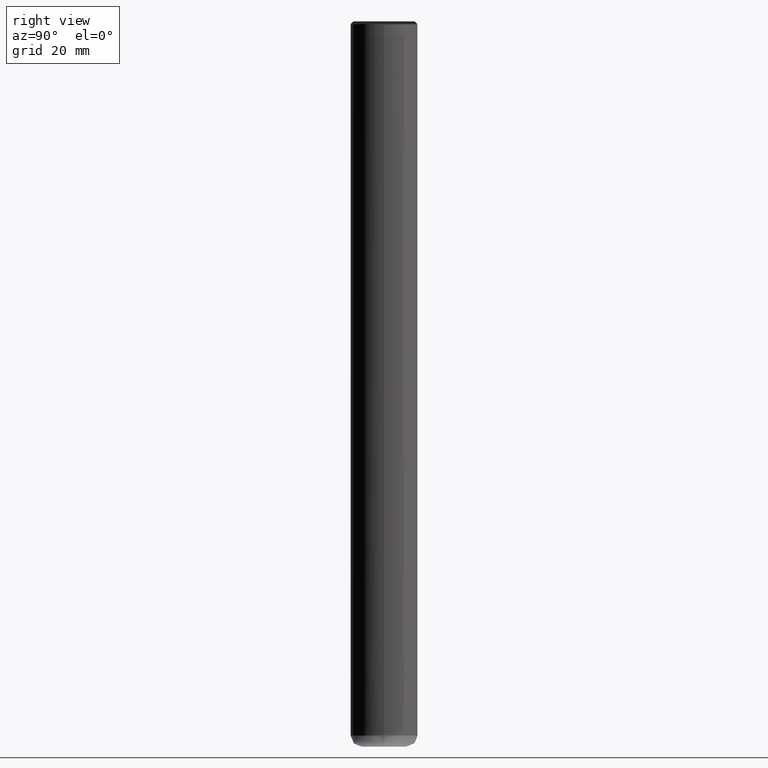
[diagram: clean part render]
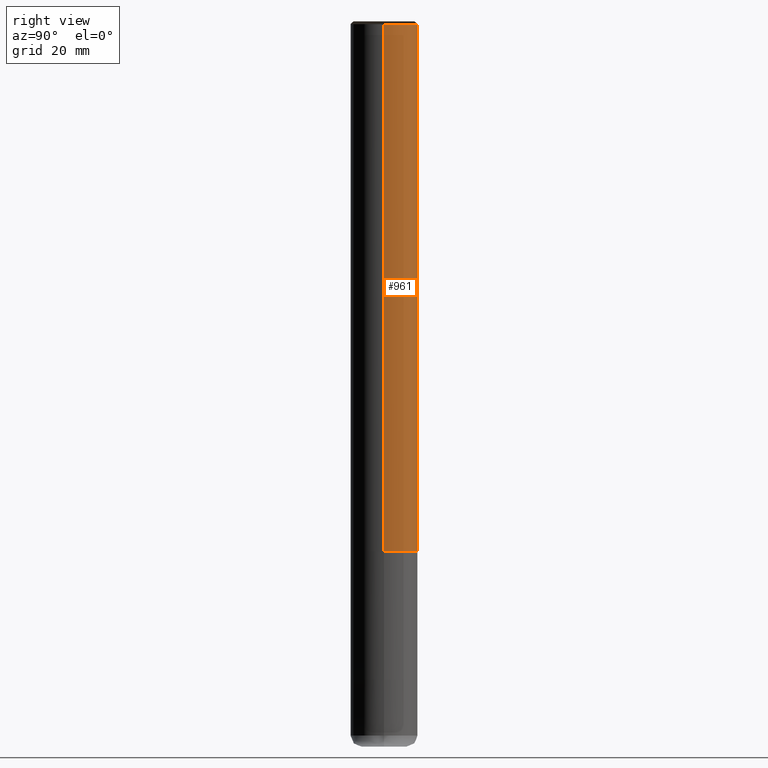
[diagram: same view with one face highlighted and labeled with its STEP entity id]
A machine part, right view. The second image highlights one B-rep face of the part: STEP entity #961.
In plain terms, the highlighted face is a freeform B-spline surface patch.
Its self-contained STEP definition (entity closure, byte-faithful):
#726=CARTESIAN_POINT('',(6.0,0.0,0.0));
#727=CARTESIAN_POINT('',(6.0,6.0,0.0));
#728=CARTESIAN_POINT('',(0.0,6.0,0.0));
#729=CARTESIAN_POINT('',(-6.0,6.0,0.0));
#730=CARTESIAN_POINT('',(-6.0,0.0,0.0));
#731=CARTESIAN_POINT('',(6.0,0.0,94.5));
#732=CARTESIAN_POINT('',(6.0,6.0,94.5));
#733=CARTESIAN_POINT('',(0.0,6.0,94.5));
#734=CARTESIAN_POINT('',(-6.0,6.0,94.5));
#735=CARTESIAN_POINT('',(-6.0,0.0,94.5));
#942=(
BOUNDED_SURFACE()
B_SPLINE_SURFACE(1,2,(
(#726,#727,#728,#729,#730),
(#731,#732,#733,#734,#735)
), .UNSPECIFIED.,.F.,.F.,.F.)
B_SPLINE_SURFACE_WITH_KNOTS((2,2),(3,2,3),(
0.0,1.0),(
0.0,0.5,1.0), .UNSPECIFIED.)
GEOMETRIC_REPRESENTATION_ITEM()
RATIONAL_B_SPLINE_SURFACE(((1.0,0.707106781187,1.0,0.707106781187,1.0),
(1.0,0.707106781187,1.0,0.707106781187,1.0)
))
REPRESENTATION_ITEM('')
SURFACE()
);
#943=(
BOUNDED_CURVE()
B_SPLINE_CURVE(2,(#731,#732,#733,#734,#735),.UNSPECIFIED.,.F.,.F.)
B_SPLINE_CURVE_WITH_KNOTS((3,2,3),
(0.0,0.5,1.0),.UNSPECIFIED.)
CURVE()
GEOMETRIC_REPRESENTATION_ITEM()
RATIONAL_B_SPLINE_CURVE((1.0,0.707106781187,1.0,0.707106781187,1.0))
REPRESENTATION_ITEM('')
);
#944=(
BOUNDED_CURVE()
B_SPLINE_CURVE(1,(#735,#730),.UNSPECIFIED.,.F.,.F.)
B_SPLINE_CURVE_WITH_KNOTS((2,2),
(0.0,1.0),.UNSPECIFIED.)
CURVE()
GEOMETRIC_REPRESENTATION_ITEM()
RATIONAL_B_SPLINE_CURVE((1.0,1.0))
REPRESENTATION_ITEM('')
);
#945=(
BOUNDED_CURVE()
B_SPLINE_CURVE(2,(#730,#729,#728,#727,#726),.UNSPECIFIED.,.F.,.F.)
B_SPLINE_CURVE_WITH_KNOTS((3,2,3),
(0.0,0.5,1.0),.UNSPECIFIED.)
CURVE()
GEOMETRIC_REPRESENTATION_ITEM()
RATIONAL_B_SPLINE_CURVE((1.0,0.707106781187,1.0,0.707106781187,1.0))
REPRESENTATION_ITEM('')
);
#946=(
BOUNDED_CURVE()
B_SPLINE_CURVE(1,(#726,#731),.UNSPECIFIED.,.F.,.F.)
B_SPLINE_CURVE_WITH_KNOTS((2,2),
(0.0,1.0),.UNSPECIFIED.)
CURVE()
GEOMETRIC_REPRESENTATION_ITEM()
RATIONAL_B_SPLINE_CURVE((1.0,1.0))
REPRESENTATION_ITEM('')
);
#947=VERTEX_POINT('',#726);
#948=VERTEX_POINT('',#730);
#949=VERTEX_POINT('',#731);
#950=VERTEX_POINT('',#735);
#951=EDGE_CURVE('',#949,#950,#943,.T.);
#952=EDGE_CURVE('',#950,#948,#944,.T.);
#953=EDGE_CURVE('',#948,#947,#945,.T.);
#954=EDGE_CURVE('',#947,#949,#946,.T.);
#955=ORIENTED_EDGE('',*,*,#951,.T.);
#956=ORIENTED_EDGE('',*,*,#952,.T.);
#957=ORIENTED_EDGE('',*,*,#953,.T.);
#958=ORIENTED_EDGE('',*,*,#954,.T.);
#959=EDGE_LOOP('',(#955,#956,#957,#958));
#960=FACE_OUTER_BOUND('',#959,.T.);
#961=ADVANCED_FACE('',(#960),#942,.T.);